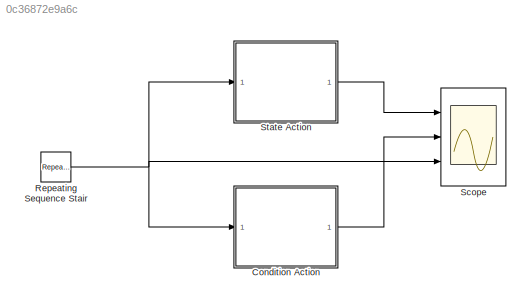
MODEL slx_0c36872e9a6c
KIND model
CONFIG AbsTol = auto
CONFIG EnableMultiTasking = off
CONFIG FixedStep = auto
CONFIG MaxStep = auto
CONFIG MinStep = auto
CONFIG RelTol = 1e-3
CONFIG SampleTimeConstraint = Unconstrained
CONFIG Solver = FixedStepDiscrete
CONFIG SolverName = FixedStepDiscrete
CONFIG StartTime = 0.0
CONFIG StopTime = 10.0
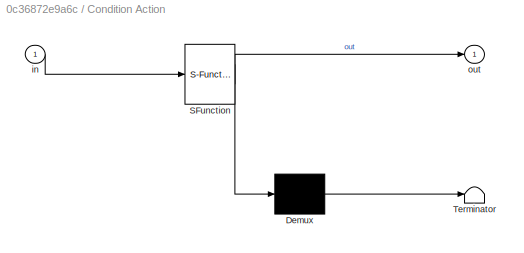
BLOCK [SubSystem] Condition Action
  ErrorFcn = Stateflow.Translate.translate
  PermitHierarchicalResolution = ExplicitOnly
  Ports = [1, 1]
  RequestExecContextInheritance = off
  SFBlockType = Chart
  TreatAsAtomicUnit = on
BLOCK [Demux] Condition Action/ Demux 
  Outputs = 1
  Ports = [1, 1]
BLOCK [S-Function] Condition Action/ SFunction 
  EnableBusSupport = on
  FunctionName = sf_sfun
  PortCounts = [1 2]
  Ports = [1, 2]
  SFcnIsStateOwnerBlock = off
  SFunctionDeploymentMode = off
  Tag = Stateflow S-Function StateAction_vs_ConditionAction 1
BLOCK [Terminator] Condition Action/ Terminator 
BLOCK [Inport] Condition Action/in
  IconDisplay = Port number
BLOCK [Outport] Condition Action/out
  IconDisplay = Port number
BLOCK [Reference] Repeating Sequence Stair  REF=simulink/Sources/Repeating
Sequence
Stair
  Ports = [0, 1]
  SourceBlock = simulink/Sources/Repeating\nSequence\nStair
  SourceProductBaseCode = SL
  SourceProductName = Simulink
  SourceType = Repeating Sequence Stair
BLOCK [Scope] Scope
  Floating = off
  NumInputPorts = 3
  Ports = [3]
  ScopeSpecificationString = Simulink.scopes.TimeScopeBlockCfg('CurrentConfiguration', extmgr.ConfigurationSet(extmgr.Configuration('Core','General UI',true),extmgr.Configuration('Core','Source UI',true),extmgr.Configuration('Sources','WiredSimulink',true),extmgr.Configuration('Visuals','Time Domain',true,'SerializedDisplays',{struct('MinYLimReal','0.875','MaxYLimReal','2.125','YLabelReal','','MinYLimMag','0.875','MaxYLimMag'...<+2764ch>
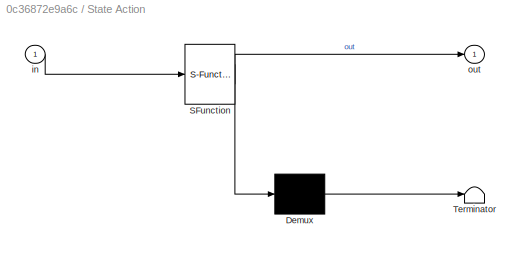
BLOCK [SubSystem] State Action
  ErrorFcn = Stateflow.Translate.translate
  PermitHierarchicalResolution = ExplicitOnly
  Ports = [1, 1]
  RequestExecContextInheritance = off
  SFBlockType = Chart
  TreatAsAtomicUnit = on
BLOCK [Demux] State Action/ Demux 
  Outputs = 1
  Ports = [1, 1]
BLOCK [S-Function] State Action/ SFunction 
  EnableBusSupport = on
  FunctionName = sf_sfun
  PortCounts = [1 2]
  Ports = [1, 2]
  SFcnIsStateOwnerBlock = off
  SFunctionDeploymentMode = off
  Tag = Stateflow S-Function StateAction_vs_ConditionAction 3
BLOCK [Terminator] State Action/ Terminator 
BLOCK [Inport] State Action/in
  IconDisplay = Port number
BLOCK [Outport] State Action/out
  IconDisplay = Port number
LINE Condition Action:1 -> Scope:2
NET Repeating Sequence Stair:1 -> Condition Action:1, Scope:3, State Action:1
LINE State Action:1 -> Scope:1
note: NET lines group one-source signal fan-out (src -> all destinations, sorted); 1:1 wires keep LINE
CHART Condition Action states=2 transitions=3
  STATE_LABEL 'State1'
  STATE_LABEL 'State2'
CHART State Action states=2 transitions=3
  STATE_LABEL 'State1\nen: out=1;'
  STATE_LABEL 'State2\nen: out=2;'
